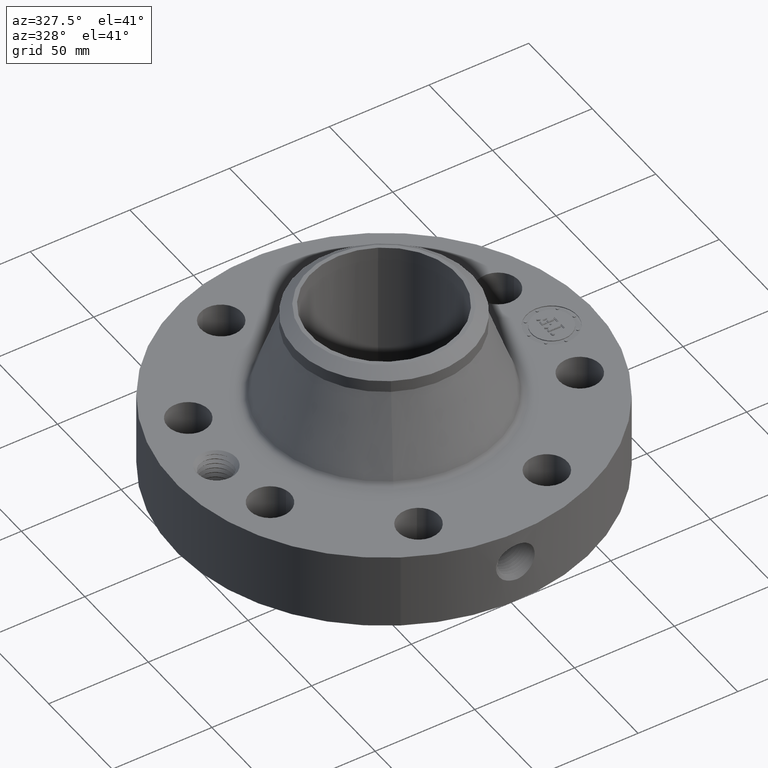
[diagram: clean part render]
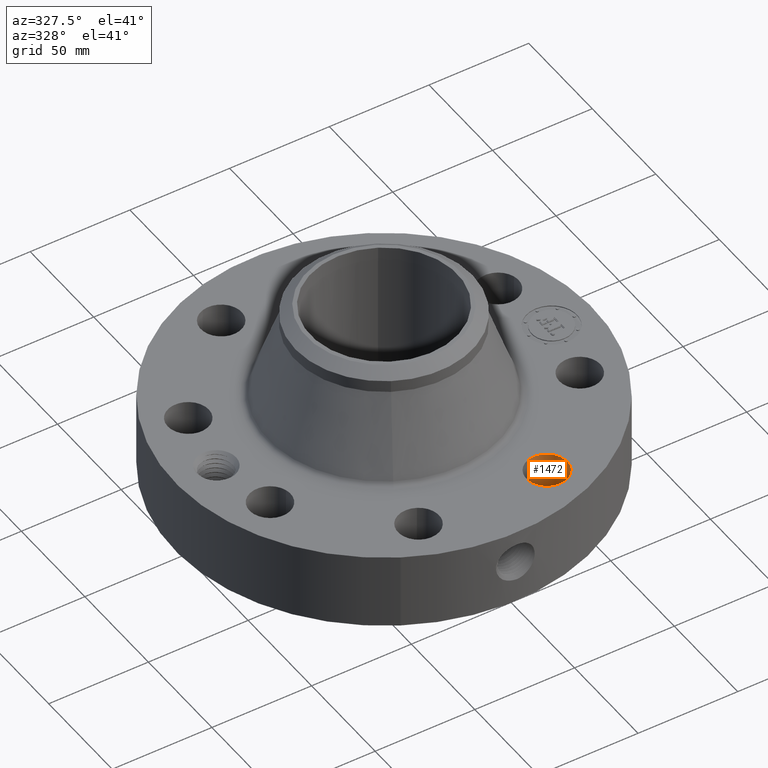
[diagram: same view with one face highlighted and labeled with its STEP entity id]
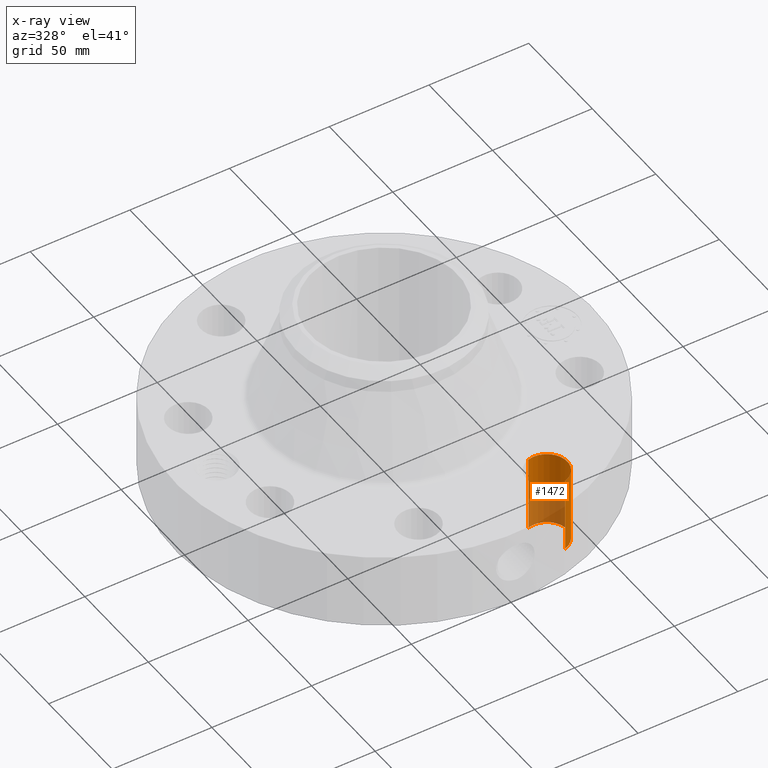
[diagram: x-ray of the same camera — body ghosted, the highlighted face saturated]
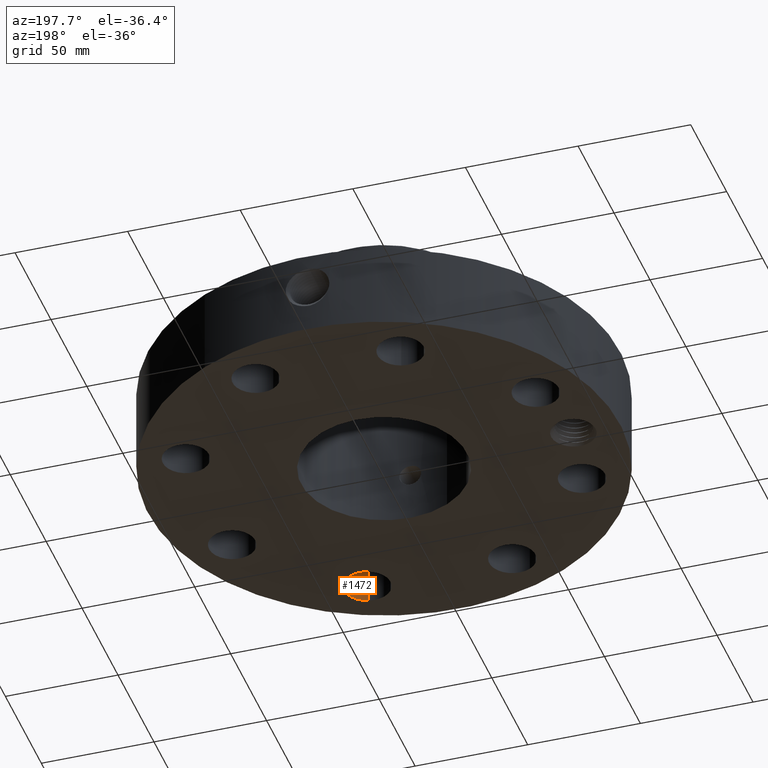
[diagram: same view with one face highlighted and labeled with its STEP entity id]
A machine part, auxiliary view. The second image highlights one B-rep face of the part: STEP entity #1472.
The next image is the same camera in x-ray: the body ghosted, the highlighted face saturated — about 35% of this face is hidden behind the body in this view.
A second angle (auxiliary view) of the same face is appended — the face is thin or edge-on in the first view.
In plain terms, the highlighted cylindrical surface (edge-blend (fillet) strip) has radius 10.287 mm, axis along (0, -0, -1).
Its self-contained STEP definition (entity closure, byte-faithful):
#260=AXIS2_PLACEMENT_3D('Circle Axis2P3D',#258,#259,$) ;
#586=AXIS2_PLACEMENT_3D('Circle Axis2P3D',#584,#585,$) ;
#1454=AXIS2_PLACEMENT_3D('Cylinder Axis2P3D',#1451,#1452,#1453) ;
#258=CARTESIAN_POINT('Axis2P3D Location',(1.26668216113,-3.05804125262,0.0600000000002)) ;
#262=CARTESIAN_POINT('Vertex',(1.15265865102,-2.66942365248,0.0600000000002)) ;
#264=CARTESIAN_POINT('Vertex',(1.38070567125,-3.44665885277,0.0600000000002)) ;
#579=CARTESIAN_POINT('Vertex',(1.38070567125,-3.44665885277,1.56000000001)) ;
#581=CARTESIAN_POINT('Vertex',(1.15265865102,-2.66942365248,1.56000000001)) ;
#584=CARTESIAN_POINT('Axis2P3D Location',(1.26668216113,-3.05804125262,1.56000000001)) ;
#1451=CARTESIAN_POINT('Axis2P3D Location',(1.26668216113,-3.05804125262,1.55606299213)) ;
#1456=CARTESIAN_POINT('Line Origine',(1.15265865102,-2.66942365248,0.810000000003)) ;
#1461=CARTESIAN_POINT('Line Origine',(1.38070567125,-3.44665885277,0.810000000003)) ;
#259=DIRECTION('Axis2P3D Direction',(0.,0.,-0.0393700787402)) ;
#585=DIRECTION('Axis2P3D Direction',(0.,0.,-0.0393700787402)) ;
#1452=DIRECTION('Axis2P3D Direction',(0.,-0.,-0.0393700787402)) ;
#1453=DIRECTION('Axis2P3D XDirection',(0.0110842335096,-0.0377775444876,0.)) ;
#1457=DIRECTION('Vector Direction',(0.,0.,-0.0393700787402)) ;
#1462=DIRECTION('Vector Direction',(0.,0.,-0.0393700787402)) ;
#1458=VECTOR('Line Direction',#1457,0.0393700787402) ;
#1463=VECTOR('Line Direction',#1462,0.0393700787402) ;
#1467=ORIENTED_EDGE('',*,*,#1460,.F.) ;
#1468=ORIENTED_EDGE('',*,*,#266,.T.) ;
#1469=ORIENTED_EDGE('',*,*,#1465,.T.) ;
#1470=ORIENTED_EDGE('',*,*,#588,.F.) ;
#1472=ADVANCED_FACE('PartBody',(#1471),#1455,.F.) ;
#261=CIRCLE('generated circle',#260,0.405000000002) ;
#587=CIRCLE('generated circle',#586,0.405000000002) ;
#1455=CYLINDRICAL_SURFACE('generated cylinder',#1454,0.405000000002) ;
#266=EDGE_CURVE('',#263,#265,#261,.T.) ;
#588=EDGE_CURVE('',#582,#580,#587,.T.) ;
#1460=EDGE_CURVE('',#263,#582,#1459,.F.) ;
#1465=EDGE_CURVE('',#265,#580,#1464,.F.) ;
#1466=EDGE_LOOP('',(#1467,#1468,#1469,#1470)) ;
#1471=FACE_OUTER_BOUND('',#1466,.T.) ;
#1459=LINE('Line',#1456,#1458) ;
#1464=LINE('Line',#1461,#1463) ;
#263=VERTEX_POINT('',#262) ;
#265=VERTEX_POINT('',#264) ;
#580=VERTEX_POINT('',#579) ;
#582=VERTEX_POINT('',#581) ;